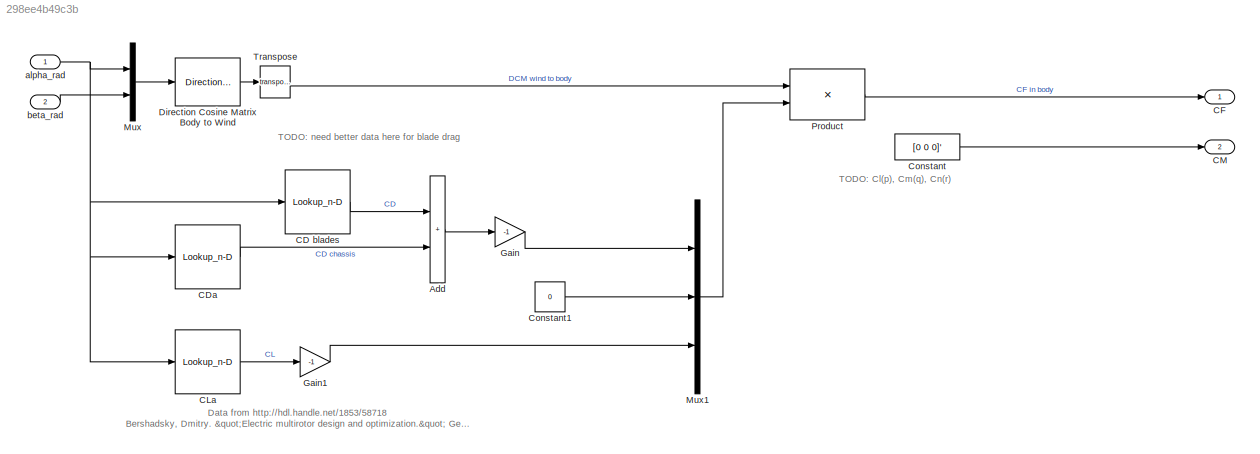
MODEL slx_298ee4b49c3b
KIND model
CONFIG AbsTol = auto
CONFIG EnableMultiTasking = off
CONFIG FixedStep = auto
CONFIG MaxStep = auto
CONFIG MinStep = auto
CONFIG RelTol = 1e-3
CONFIG SampleTimeConstraint = Unconstrained
CONFIG SolverName = VariableStepAuto
CONFIG StartTime = 0.0
CONFIG StopTime = inf
BLOCK [Sum] Add
  IconShape = rectangular
BLOCK [Lookup_n-D] CD blades
  BreakpointsForDimension1 = alphaBkpts_rad
  InputPortMap = u0
  InternalRulePriority = Speed
  NumberOfTableDimensions = 1
  RndMeth = Simplest
  Table = C_D
BLOCK [Lookup_n-D] CDa
  BreakpointsForDimension1 = alphaBkpts_rad
  InputPortMap = u0
  InternalRulePriority = Speed
  NumberOfTableDimensions = 1
  RndMeth = Simplest
  Table = C_D
BLOCK [Outport] CF
BLOCK [Lookup_n-D] CLa
  BreakpointsForDimension1 = alphaBkpts_rad
  InputPortMap = u0
  InternalRulePriority = Speed
  NumberOfTableDimensions = 1
  RndMeth = Simplest
  Table = C_L
BLOCK [Outport] CM
  Port = 2
BLOCK [Constant] Constant
  Value = [0 0 0]'
BLOCK [Constant] Constant1
  Value = 0
BLOCK [Reference] Direction Cosine Matrix Body to Wind  REF=aerolibtransform2/Direction Cosine Matrix
Body to Wind
  SourceBlock = aerolibtransform2/Direction Cosine Matrix\nBody to Wind
  SourceType = DCM Body to Wind
BLOCK [Gain] Gain
  Gain = -1
BLOCK [Gain] Gain1
  Gain = -1
BLOCK [Mux] Mux
  DisplayOption = bar
  Inputs = 2
BLOCK [Mux] Mux1
  DisplayOption = bar
  Inputs = 3
BLOCK [Product] Product
  Multiplication = Matrix(*)
BLOCK [Math] Transpose
  Operator = transpose
BLOCK [Inport] alpha_rad
BLOCK [Inport] beta_rad
  Port = 2
ANNOTATION (root): Data from http://hdl.handle.net/1853/58718 Bershadsky, Dmitry. "Electric multirotor design and optimization." Georgia Institute of Technology, Atlanta (2017).
ANNOTATION (root): TODO: Cl(p), Cm(q), Cn(r)
ANNOTATION (root): TODO: need better data here for blade drag
LINE Add:1 -> Gain:1
LINE CD blades:1 -> Add:1
LINE CDa:1 -> Add:2
LINE CLa:1 -> Gain1:1
LINE Constant1:1 -> Mux1:2
LINE Constant:1 -> CM:1
LINE Direction Cosine Matrix Body to Wind:1 -> Transpose:1
LINE Gain1:1 -> Mux1:3
LINE Gain:1 -> Mux1:1
LINE Mux1:1 -> Product:2
LINE Mux:1 -> Direction Cosine Matrix Body to Wind:1
LINE Product:1 -> CF:1
LINE Transpose:1 -> Product:1
NET alpha_rad:1 -> CD blades:1, CDa:1, CLa:1, Mux:1
LINE beta_rad:1 -> Mux:2
note: NET lines group one-source signal fan-out (src -> all destinations, sorted); 1:1 wires keep LINE
